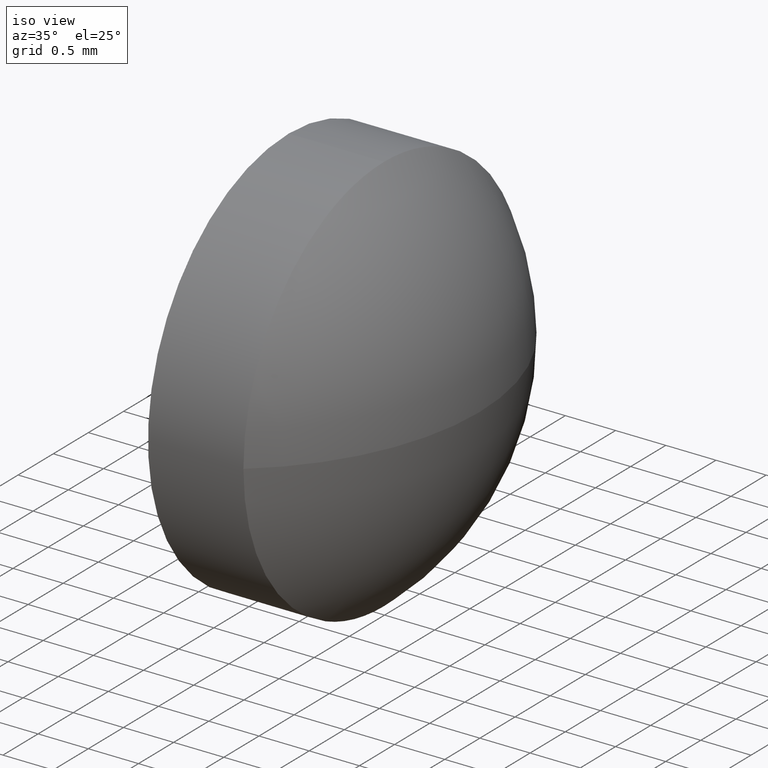
[diagram: clean part render]
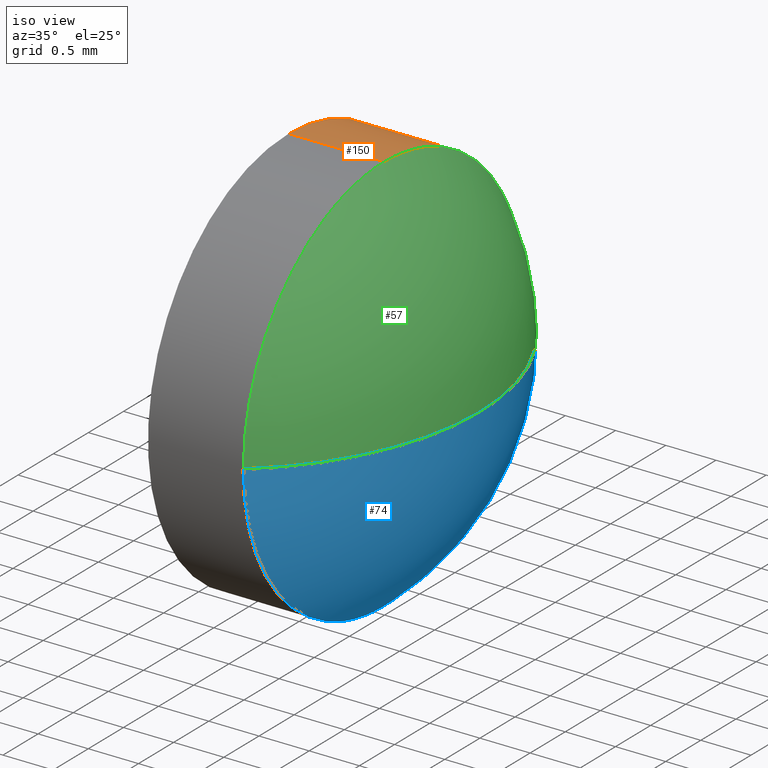
[diagram: same view with three faces highlighted in distinct colors, each labeled with its STEP entity id]
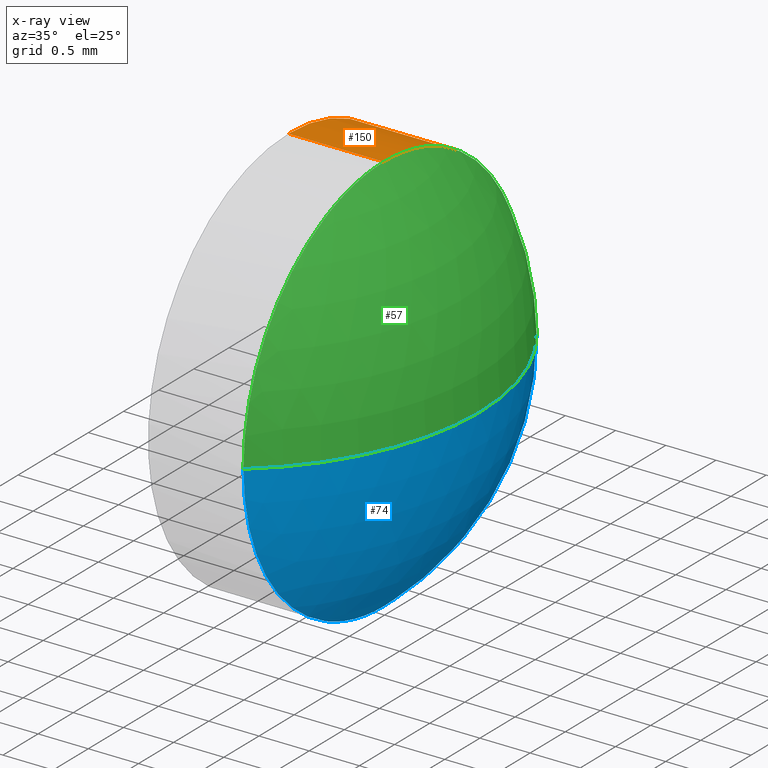
[diagram: x-ray of the same camera — body ghosted, the three highlighted faces saturated]
A machine part, iso view with three faces highlighted in distinct colors.
The next image is the same camera in x-ray (body ghosted, the three faces saturated) — at least one of them is partly hidden behind the body in this view.
Their STEP definitions:

[orange] entity #150 — the highlighted cylindrical surface (partial cylindrical patch) has radius 2 mm, axis along (-1, -0, -0).
#4 = CARTESIAN_POINT ( 'NONE',  ( 423.4283672634038600, 105.4806161096724700, -2.000000000000008900 ) ) ;
#5 = CARTESIAN_POINT ( 'NONE',  ( 423.4283672634038600, 105.4806161096724700, 2.000000000000008900 ) ) ;
#6 = DIRECTION ( 'NONE',  ( -1.000000000000000000, -0.0000000000000000000, -0.0000000000000000000 ) ) ;
#7 = CIRCLE ( 'NONE', #147, 2.000000000000015500 ) ;
#8 = CARTESIAN_POINT ( 'NONE',  ( 423.4283672634038600, 105.4806161096724700, 0.0000000000000000000 ) ) ;
#12 = AXIS2_PLACEMENT_3D ( 'NONE', #118, #6, #134 ) ;
#19 = DIRECTION ( 'NONE',  ( 0.0000000000000000000, 0.0000000000000000000, 1.000000000000000000 ) ) ;
#24 = VERTEX_POINT ( 'NONE', #68 ) ;
#25 = AXIS2_PLACEMENT_3D ( 'NONE', #8, #73, #99 ) ;
#33 = DIRECTION ( 'NONE',  ( -1.000000000000000000, -0.0000000000000000000, -0.0000000000000000000 ) ) ;
#36 = LINE ( 'NONE', #5, #170 ) ;
#42 = CARTESIAN_POINT ( 'NONE',  ( 424.0583397017737200, 105.4806161096724700, 2.000000000000001800 ) ) ;
#45 = EDGE_CURVE ( 'NONE', #69, #164, #157, .T. ) ;
#47 = FACE_OUTER_BOUND ( 'NONE', #77, .T. ) ;
#48 = DIRECTION ( 'NONE',  ( -1.000000000000000000, -0.0000000000000000000, -0.0000000000000000000 ) ) ;
#53 = CARTESIAN_POINT ( 'NONE',  ( 424.0583397017737200, 105.4806161096724700, 0.0000000000000000000 ) ) ;
#54 = DIRECTION ( 'NONE',  ( -1.000000000000000000, -0.0000000000000000000, -0.0000000000000000000 ) ) ;
#67 = ORIENTED_EDGE ( 'NONE', *, *, #45, .F. ) ;
#68 = CARTESIAN_POINT ( 'NONE',  ( 425.0083397017737100, 107.4806161096724800, 0.0000000000000000000 ) ) ;
#69 = VERTEX_POINT ( 'NONE', #42 ) ;
#70 = ORIENTED_EDGE ( 'NONE', *, *, #101, .F. ) ;
#73 = DIRECTION ( 'NONE',  ( -1.000000000000000000, -0.0000000000000000000, -0.0000000000000000000 ) ) ;
#75 = CARTESIAN_POINT ( 'NONE',  ( 425.0083397017737100, 105.4806161096724700, 0.0000000000000000000 ) ) ;
#77 = EDGE_LOOP ( 'NONE', ( #169, #93, #88, #67, #70 ) ) ;
#84 = AXIS2_PLACEMENT_3D ( 'NONE', #53, #54, #160 ) ;
#85 = VERTEX_POINT ( 'NONE', #129 ) ;
#88 = ORIENTED_EDGE ( 'NONE', *, *, #162, .T. ) ;
#91 = EDGE_CURVE ( 'NONE', #24, #141, #7, .T. ) ;
#93 = ORIENTED_EDGE ( 'NONE', *, *, #91, .T. ) ;
#98 = CARTESIAN_POINT ( 'NONE',  ( 425.0083397017737100, 105.4806161096724700, -2.000000000000015500 ) ) ;
#99 = DIRECTION ( 'NONE',  ( 0.0000000000000000000, 0.0000000000000000000, 1.000000000000000000 ) ) ;
#101 = EDGE_CURVE ( 'NONE', #85, #69, #36, .T. ) ;
#118 = CARTESIAN_POINT ( 'NONE',  ( 425.0083397017737100, 105.4806161096724700, 0.0000000000000000000 ) ) ;
#121 = CARTESIAN_POINT ( 'NONE',  ( 424.0583397017737200, 105.4806161096724700, -2.000000000000001800 ) ) ;
#125 = LINE ( 'NONE', #4, #163 ) ;
#129 = CARTESIAN_POINT ( 'NONE',  ( 425.0083397017737100, 105.4806161096724700, 2.000000000000015500 ) ) ;
#134 = DIRECTION ( 'NONE',  ( 0.0000000000000000000, 0.0000000000000000000, 1.000000000000000000 ) ) ;
#141 = VERTEX_POINT ( 'NONE', #98 ) ;
#147 = AXIS2_PLACEMENT_3D ( 'NONE', #75, #182, #19 ) ;
#150 = ADVANCED_FACE ( 'NONE', ( #47 ), #166, .T. ) ;
#152 = EDGE_CURVE ( 'NONE', #85, #24, #175, .T. ) ;
#157 = CIRCLE ( 'NONE', #84, 2.000000000000001800 ) ;
#160 = DIRECTION ( 'NONE',  ( 0.0000000000000000000, 0.0000000000000000000, 1.000000000000000000 ) ) ;
#162 = EDGE_CURVE ( 'NONE', #141, #164, #125, .T. ) ;
#163 = VECTOR ( 'NONE', #33, 1000.000000000000000 ) ;
#164 = VERTEX_POINT ( 'NONE', #121 ) ;
#166 = CYLINDRICAL_SURFACE ( 'NONE', #25, 2.000000000000008900 ) ;
#169 = ORIENTED_EDGE ( 'NONE', *, *, #152, .T. ) ;
#170 = VECTOR ( 'NONE', #48, 1000.000000000000000 ) ;
#175 = CIRCLE ( 'NONE', #12, 2.000000000000015500 ) ;
#182 = DIRECTION ( 'NONE',  ( -1.000000000000000000, -0.0000000000000000000, -0.0000000000000000000 ) ) ;

[blue] entity #74 — the highlighted spherical surface has radius 2.5803 mm.
#1 = FACE_OUTER_BOUND ( 'NONE', #55, .T. ) ;
#3 = AXIS2_PLACEMENT_3D ( 'NONE', #100, #83, #138 ) ;
#7 = CIRCLE ( 'NONE', #147, 2.000000000000015500 ) ;
#17 = ORIENTED_EDGE ( 'NONE', *, *, #183, .T. ) ;
#19 = DIRECTION ( 'NONE',  ( 0.0000000000000000000, 0.0000000000000000000, 1.000000000000000000 ) ) ;
#24 = VERTEX_POINT ( 'NONE', #68 ) ;
#28 = ORIENTED_EDGE ( 'NONE', *, *, #143, .F. ) ;
#34 = DIRECTION ( 'NONE',  ( 0.0000000000000000000, 1.224646799147353200E-016, -1.000000000000000000 ) ) ;
#40 = SPHERICAL_SURFACE ( 'NONE', #108, 2.580263128508496700 ) ;
#46 = DIRECTION ( 'NONE',  ( -0.0000000000000000000, 0.0000000000000000000, 1.000000000000000000 ) ) ;
#55 = EDGE_LOOP ( 'NONE', ( #133, #17, #28, #115 ) ) ;
#56 = AXIS2_PLACEMENT_3D ( 'NONE', #155, #34, #61 ) ;
#59 = VERTEX_POINT ( 'NONE', #177 ) ;
#61 = DIRECTION ( 'NONE',  ( 0.0000000000000000000, 1.000000000000000000, 1.224646799147354200E-016 ) ) ;
#68 = CARTESIAN_POINT ( 'NONE',  ( 425.0083397017737100, 107.4806161096724800, 0.0000000000000000000 ) ) ;
#71 = DIRECTION ( 'NONE',  ( 0.0000000000000000000, 1.000000000000000000, 0.0000000000000000000 ) ) ;
#74 = ADVANCED_FACE ( 'NONE', ( #1 ), #40, .T. ) ;
#75 = CARTESIAN_POINT ( 'NONE',  ( 425.0083397017737100, 105.4806161096724700, 0.0000000000000000000 ) ) ;
#76 = DIRECTION ( 'NONE',  ( 1.000000000000000000, 0.0000000000000000000, 0.0000000000000000000 ) ) ;
#83 = DIRECTION ( 'NONE',  ( -1.000000000000000000, -0.0000000000000000000, -0.0000000000000000000 ) ) ;
#89 = CIRCLE ( 'NONE', #56, 2.580263128508494900 ) ;
#91 = EDGE_CURVE ( 'NONE', #24, #141, #7, .T. ) ;
#94 = DIRECTION ( 'NONE',  ( -0.0000000000000000000, 0.0000000000000000000, -1.000000000000000000 ) ) ;
#96 = CARTESIAN_POINT ( 'NONE',  ( 423.3780765903894700, 105.4806161096724400, 0.0000000000000000000 ) ) ;
#98 = CARTESIAN_POINT ( 'NONE',  ( 425.0083397017737100, 105.4806161096724700, -2.000000000000015500 ) ) ;
#100 = CARTESIAN_POINT ( 'NONE',  ( 425.0083397017737100, 105.4806161096724700, 0.0000000000000000000 ) ) ;
#108 = AXIS2_PLACEMENT_3D ( 'NONE', #96, #94, #71 ) ;
#114 = CARTESIAN_POINT ( 'NONE',  ( 425.0083397017737100, 103.4806161096724300, -2.449293598294728600E-016 ) ) ;
#115 = ORIENTED_EDGE ( 'NONE', *, *, #91, .F. ) ;
#120 = CIRCLE ( 'NONE', #176, 2.580263128508508700 ) ;
#122 = CARTESIAN_POINT ( 'NONE',  ( 423.3780765903894700, 105.4806161096724400, 0.0000000000000000000 ) ) ;
#130 = VERTEX_POINT ( 'NONE', #114 ) ;
#133 = ORIENTED_EDGE ( 'NONE', *, *, #181, .F. ) ;
#135 = CIRCLE ( 'NONE', #3, 2.000000000000015500 ) ;
#138 = DIRECTION ( 'NONE',  ( 0.0000000000000000000, 0.0000000000000000000, 1.000000000000000000 ) ) ;
#141 = VERTEX_POINT ( 'NONE', #98 ) ;
#143 = EDGE_CURVE ( 'NONE', #141, #130, #135, .T. ) ;
#147 = AXIS2_PLACEMENT_3D ( 'NONE', #75, #182, #19 ) ;
#155 = CARTESIAN_POINT ( 'NONE',  ( 423.3780765903894700, 105.4806161096724400, 0.0000000000000000000 ) ) ;
#176 = AXIS2_PLACEMENT_3D ( 'NONE', #122, #46, #76 ) ;
#177 = CARTESIAN_POINT ( 'NONE',  ( 425.9583397188979500, 105.4806161096724400, 0.0000000000000000000 ) ) ;
#181 = EDGE_CURVE ( 'NONE', #59, #24, #120, .T. ) ;
#182 = DIRECTION ( 'NONE',  ( -1.000000000000000000, -0.0000000000000000000, -0.0000000000000000000 ) ) ;
#183 = EDGE_CURVE ( 'NONE', #59, #130, #89, .T. ) ;

[green] entity #57 — the highlighted spherical surface has radius 2.5803 mm.
#2 = ORIENTED_EDGE ( 'NONE', *, *, #9, .F. ) ;
#6 = DIRECTION ( 'NONE',  ( -1.000000000000000000, -0.0000000000000000000, -0.0000000000000000000 ) ) ;
#9 = EDGE_CURVE ( 'NONE', #130, #85, #41, .T. ) ;
#12 = AXIS2_PLACEMENT_3D ( 'NONE', #118, #6, #134 ) ;
#21 = ORIENTED_EDGE ( 'NONE', *, *, #183, .F. ) ;
#22 = DIRECTION ( 'NONE',  ( 0.0000000000000000000, 0.0000000000000000000, 1.000000000000000000 ) ) ;
#24 = VERTEX_POINT ( 'NONE', #68 ) ;
#34 = DIRECTION ( 'NONE',  ( 0.0000000000000000000, 1.224646799147353200E-016, -1.000000000000000000 ) ) ;
#41 = CIRCLE ( 'NONE', #95, 2.000000000000015500 ) ;
#46 = DIRECTION ( 'NONE',  ( -0.0000000000000000000, 0.0000000000000000000, 1.000000000000000000 ) ) ;
#56 = AXIS2_PLACEMENT_3D ( 'NONE', #155, #34, #61 ) ;
#57 = ADVANCED_FACE ( 'NONE', ( #78 ), #110, .T. ) ;
#59 = VERTEX_POINT ( 'NONE', #177 ) ;
#61 = DIRECTION ( 'NONE',  ( 0.0000000000000000000, 1.000000000000000000, 1.224646799147354200E-016 ) ) ;
#68 = CARTESIAN_POINT ( 'NONE',  ( 425.0083397017737100, 107.4806161096724800, 0.0000000000000000000 ) ) ;
#76 = DIRECTION ( 'NONE',  ( 1.000000000000000000, 0.0000000000000000000, 0.0000000000000000000 ) ) ;
#78 = FACE_OUTER_BOUND ( 'NONE', #79, .T. ) ;
#79 = EDGE_LOOP ( 'NONE', ( #21, #106, #113, #2 ) ) ;
#85 = VERTEX_POINT ( 'NONE', #129 ) ;
#89 = CIRCLE ( 'NONE', #56, 2.580263128508494900 ) ;
#90 = CARTESIAN_POINT ( 'NONE',  ( 425.0083397017737100, 105.4806161096724700, 0.0000000000000000000 ) ) ;
#95 = AXIS2_PLACEMENT_3D ( 'NONE', #90, #104, #22 ) ;
#104 = DIRECTION ( 'NONE',  ( -1.000000000000000000, -0.0000000000000000000, -0.0000000000000000000 ) ) ;
#106 = ORIENTED_EDGE ( 'NONE', *, *, #181, .T. ) ;
#110 = SPHERICAL_SURFACE ( 'NONE', #168, 2.580263128508496700 ) ;
#113 = ORIENTED_EDGE ( 'NONE', *, *, #152, .F. ) ;
#114 = CARTESIAN_POINT ( 'NONE',  ( 425.0083397017737100, 103.4806161096724300, -2.449293598294728600E-016 ) ) ;
#118 = CARTESIAN_POINT ( 'NONE',  ( 425.0083397017737100, 105.4806161096724700, 0.0000000000000000000 ) ) ;
#120 = CIRCLE ( 'NONE', #176, 2.580263128508508700 ) ;
#122 = CARTESIAN_POINT ( 'NONE',  ( 423.3780765903894700, 105.4806161096724400, 0.0000000000000000000 ) ) ;
#128 = CARTESIAN_POINT ( 'NONE',  ( 423.3780765903894700, 105.4806161096724400, 0.0000000000000000000 ) ) ;
#129 = CARTESIAN_POINT ( 'NONE',  ( 425.0083397017737100, 105.4806161096724700, 2.000000000000015500 ) ) ;
#130 = VERTEX_POINT ( 'NONE', #114 ) ;
#132 = DIRECTION ( 'NONE',  ( 0.0000000000000000000, 1.000000000000000000, 0.0000000000000000000 ) ) ;
#134 = DIRECTION ( 'NONE',  ( 0.0000000000000000000, 0.0000000000000000000, 1.000000000000000000 ) ) ;
#146 = DIRECTION ( 'NONE',  ( -0.0000000000000000000, 0.0000000000000000000, -1.000000000000000000 ) ) ;
#152 = EDGE_CURVE ( 'NONE', #85, #24, #175, .T. ) ;
#155 = CARTESIAN_POINT ( 'NONE',  ( 423.3780765903894700, 105.4806161096724400, 0.0000000000000000000 ) ) ;
#168 = AXIS2_PLACEMENT_3D ( 'NONE', #128, #146, #132 ) ;
#175 = CIRCLE ( 'NONE', #12, 2.000000000000015500 ) ;
#176 = AXIS2_PLACEMENT_3D ( 'NONE', #122, #46, #76 ) ;
#177 = CARTESIAN_POINT ( 'NONE',  ( 425.9583397188979500, 105.4806161096724400, 0.0000000000000000000 ) ) ;
#181 = EDGE_CURVE ( 'NONE', #59, #24, #120, .T. ) ;
#183 = EDGE_CURVE ( 'NONE', #59, #130, #89, .T. ) ;